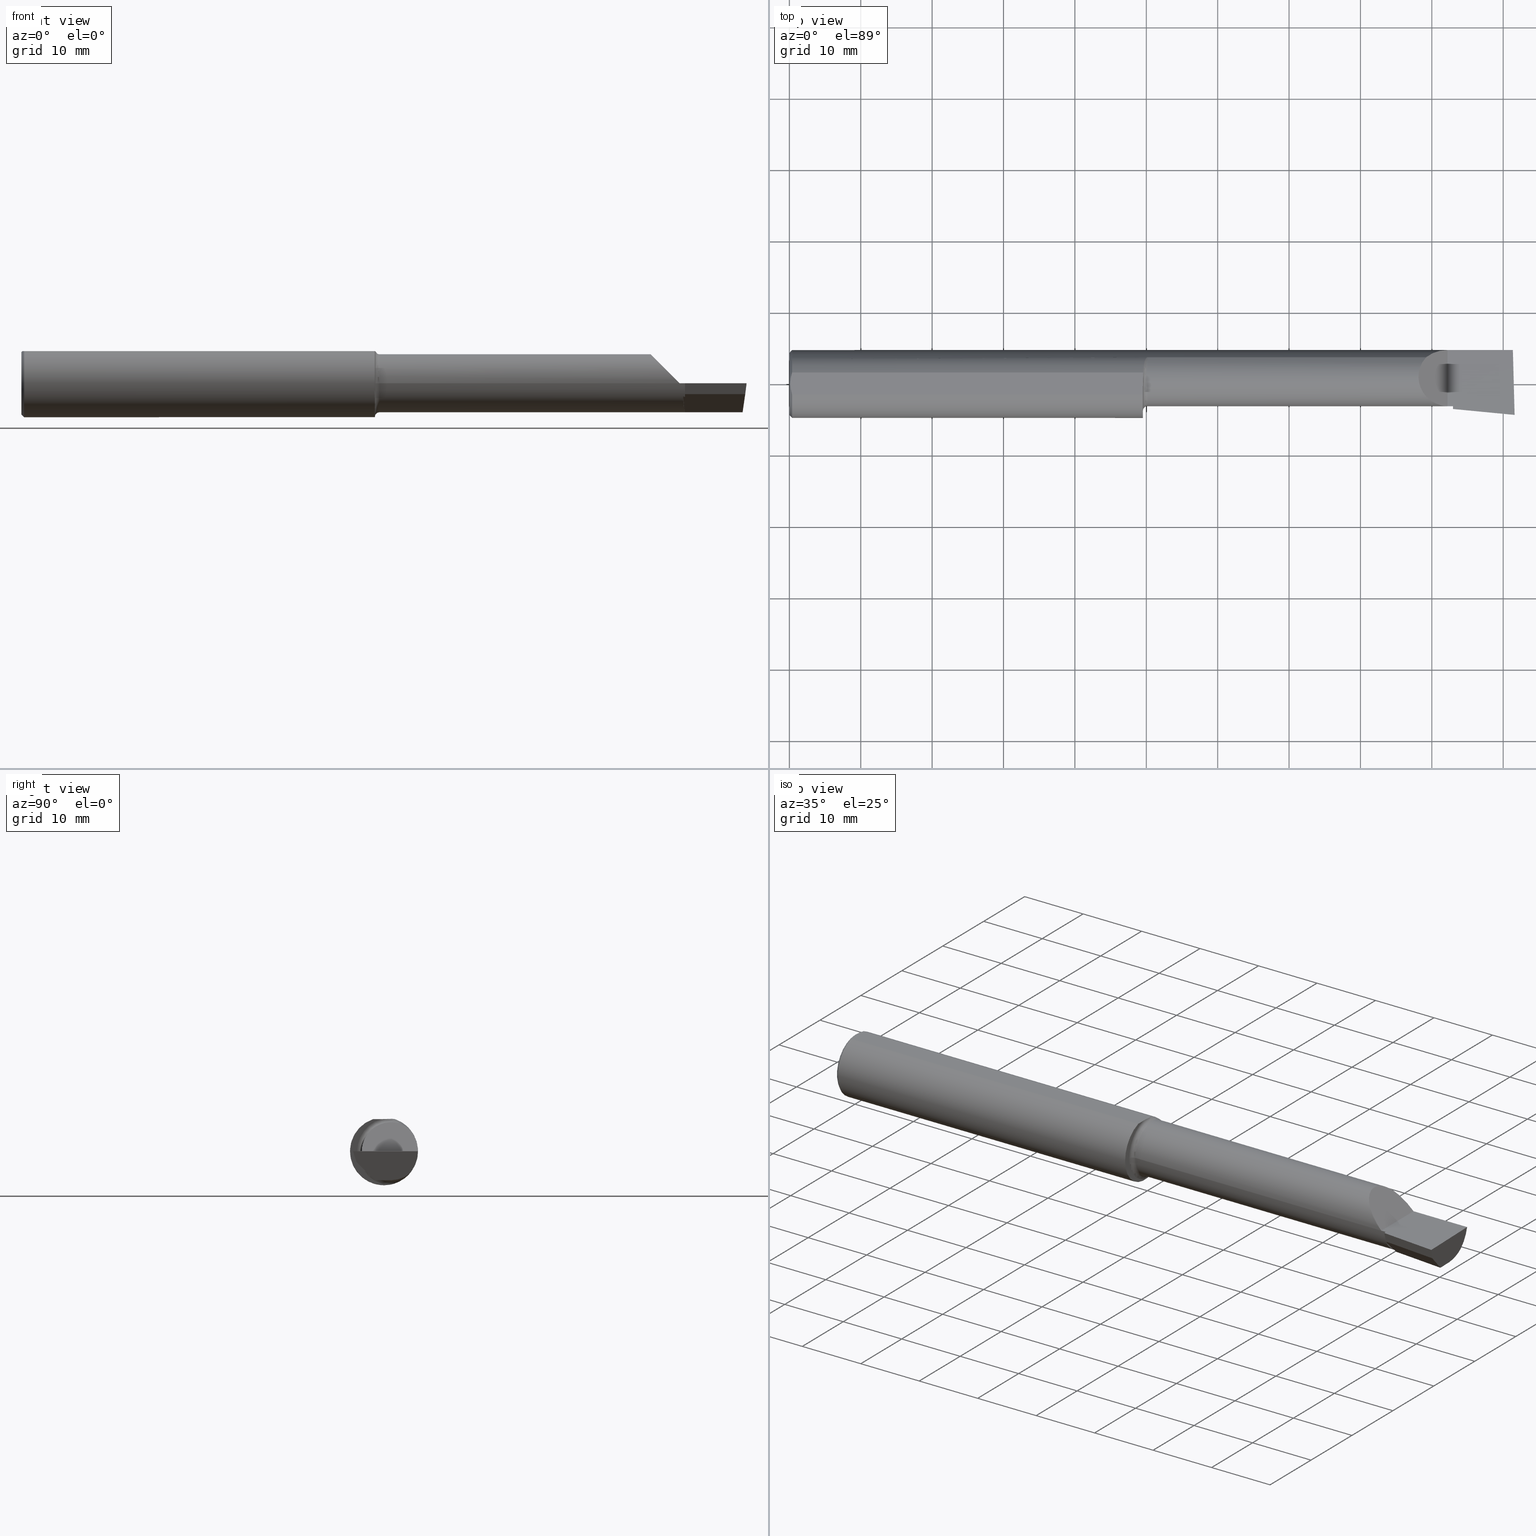
[diagram: canonical four-view strip — front | top / right | iso, engineering-drawing reading convention]
A machine part, canonical four-view strip (front | top / right | iso — engineering-drawing reading convention). The complete STEP part file that produces these views, byte-faithful:
ISO-10303-21;
HEADER;
FILE_DESCRIPTION (( 'STEP AP203' ),
    '1' );
FILE_NAME ('212121-LHB3602000.STEP',
    '2024-08-27T20:57:13',
    ( '' ),
    ( '' ),
    'SwSTEP 2.0',
    'SolidWorks 2024',
    '' );
FILE_SCHEMA (( 'CONFIG_CONTROL_DESIGN' ));
ENDSEC;

DATA;
#1 = ORIENTED_EDGE ( 'NONE', *, *, #312, .T. ) ;
#2 = PRODUCT ( '212121-LHB3602000', '212121-LHB3602000', '', ( #313 ) ) ;
#3 = CIRCLE ( 'NONE', #16, 0.1850500000000001866 ) ;
#4 = CARTESIAN_POINT ( 'NONE',  ( 1.950000000000000178, -0.1476500000000001978, 0.000000000000000000 ) ) ;
#5 = VECTOR ( 'NONE', #236, 39.37007874015748143 ) ;
#6 = CARTESIAN_POINT ( 'NONE',  ( 4.000000000000000000, 0.03739999999999996799, -0.1600499999999999701 ) ) ;
#7 = CC_DESIGN_PERSON_AND_ORGANIZATION_ASSIGNMENT ( #256, #205, ( #2 ) ) ;
#8 = EDGE_CURVE ( 'NONE', #480, #442, #420, .T. ) ;
#9 = DIRECTION ( 'NONE',  ( -1.000000000000000000, 4.268512490100411279E-18, -0.000000000000000000 ) ) ;
#10 = VERTEX_POINT ( 'NONE', #544 ) ;
#11 = DIRECTION ( 'NONE',  ( -4.268512490100411279E-18, -1.000000000000000000, 0.000000000000000000 ) ) ;
#12 = ADVANCED_FACE ( 'NONE', ( #546 ), #490, .F. ) ;
#13 = CARTESIAN_POINT ( 'NONE',  ( 0.01499999999999999424, 0.000000000000000000, 0.000000000000000000 ) ) ;
#14 = ORIENTED_EDGE ( 'NONE', *, *, #60, .T. ) ;
#15 = CARTESIAN_POINT ( 'NONE',  ( 4.002124209719674752, -0.2499430938217229448, -1.369336491024132282E-16 ) ) ;
#16 = AXIS2_PLACEMENT_3D ( 'NONE', #73, #464, #615 ) ;
#17 = FACE_OUTER_BOUND ( 'NONE', #172, .T. ) ;
#18 = LOCAL_TIME ( 13, 57, 13.00000000000000000, #704 ) ;
#19 = ORIENTED_EDGE ( 'NONE', *, *, #72, .F. ) ;
#20 = DIRECTION ( 'NONE',  ( 0.02677973311239319198, -0.9996413586354002678, -4.242669001540338239E-18 ) ) ;
#21 = AXIS2_PLACEMENT_3D ( 'NONE', #563, #403, #64 ) ;
#22 = CARTESIAN_POINT ( 'NONE',  ( 4.007570346891563773, -0.1713789414967140379, -1.378085585473596570E-16 ) ) ;
#23 = CALENDAR_DATE ( 2024, 27, 8 ) ;
#24 = ORIENTED_EDGE ( 'NONE', *, *, #596, .T. ) ;
#25 = EDGE_CURVE ( 'NONE', #523, #217, #486, .T. ) ;
#26 = LINE ( 'NONE', #424, #5 ) ;
#27 = ORIENTED_EDGE ( 'NONE', *, *, #457, .T. ) ;
#28 = DIRECTION ( 'NONE',  ( -0.1175789623991730232, 0.000000000000000000, -0.9930635365378861490 ) ) ;
#29 = CARTESIAN_POINT ( 'NONE',  ( 3.659999999999999698, -0.1038634330788594656, -0.07523725788978889717 ) ) ;
#30 = VERTEX_POINT ( 'NONE', #645 ) ;
#31 = CARTESIAN_POINT ( 'NONE',  ( 0.005000000000000064289, 2.941982644279459108E-17, 0.1773499999999999799 ) ) ;
#32 = AXIS2_PLACEMENT_3D ( 'NONE', #670, #404, #453 ) ;
#33 = FACE_OUTER_BOUND ( 'NONE', #571, .T. ) ;
#34 = ORIENTED_EDGE ( 'NONE', *, *, #182, .T. ) ;
#35 = CYLINDRICAL_SURFACE ( 'NONE', #566, 0.1600500000000000811 ) ;
#36 = CARTESIAN_POINT ( 'NONE',  ( 3.658696733852337513, -0.03937063256198262279, -0.1404363566730252033 ) ) ;
#37 = VERTEX_POINT ( 'NONE', #45 ) ;
#38 = LINE ( 'NONE', #694, #214 ) ;
#39 = ORIENTED_EDGE ( 'NONE', *, *, #356, .F. ) ;
#40 = AXIS2_PLACEMENT_3D ( 'NONE', #89, #421, #294 ) ;
#41 = EDGE_CURVE ( 'NONE', #164, #310, #149, .T. ) ;
#42 = CARTESIAN_POINT ( 'NONE',  ( 0.005000000000000064289, 2.941982644279459108E-17, 0.1773499999999999799 ) ) ;
#43 = CC_DESIGN_APPROVAL ( #560, ( #423 ) ) ;
#44 = ORIENTED_EDGE ( 'NONE', *, *, #257, .F. ) ;
#45 = CARTESIAN_POINT ( 'NONE',  ( 4.000000000000000888, -0.1706500000000002737, 0.000000000000000000 ) ) ;
#46 = CALENDAR_DATE ( 2024, 27, 8 ) ;
#47 = CARTESIAN_POINT ( 'NONE',  ( 4.000000000000000000, -0.2500000000000000555, -1.365923996832131609E-16 ) ) ;
#48 = ADVANCED_FACE ( 'NONE', ( #387 ), #494, .F. ) ;
#49 = CC_DESIGN_DATE_AND_TIME_ASSIGNMENT ( #471, #522, ( #423 ) ) ;
#50 = DIRECTION ( 'NONE',  ( 0.000000000000000000, 0.000000000000000000, 1.000000000000000000 ) ) ;
#51 = VECTOR ( 'NONE', #399, 39.37007874015748143 ) ;
#52 = DIRECTION ( 'NONE',  ( -2.998855530929885675E-18, -0.7025528302622682242, 0.7116315905652844664 ) ) ;
#53 = LINE ( 'NONE', #272, #577 ) ;
#54 = COORDINATED_UNIVERSAL_TIME_OFFSET ( 8, 0, .BEHIND. ) ;
#55 = EDGE_CURVE ( 'NONE', #361, #83, #98, .T. ) ;
#56 = CARTESIAN_POINT ( 'NONE',  ( 1.950785114220952909, 0.06039039658755706447, 0.1773499999999999799 ) ) ;
#57 = DIRECTION ( 'NONE',  ( -0.06717917588521687966, -0.6976824170844040385, 0.7132504491541848957 ) ) ;
#58 = ORIENTED_EDGE ( 'NONE', *, *, #105, .T. ) ;
#59 = CIRCLE ( 'NONE', #504, 0.1873499999999999888 ) ;
#60 = EDGE_CURVE ( 'NONE', #361, #523, #266, .T. ) ;
#61 = DIRECTION ( 'NONE',  ( 0.000000000000000000, -1.000000000000000000, 0.000000000000000000 ) ) ;
#62 = DIRECTION ( 'NONE',  ( 1.000000000000000000, 0.000000000000000000, 0.000000000000000000 ) ) ;
#63 = ORIENTED_EDGE ( 'NONE', *, *, #96, .T. ) ;
#64 = DIRECTION ( 'NONE',  ( 0.000000000000000000, 1.000000000000000000, -1.438723400918613551E-16 ) ) ;
#65 = DIRECTION ( 'NONE',  ( 0.000000000000000000, 0.000000000000000000, 1.000000000000000000 ) ) ;
#66 = ORIENTED_EDGE ( 'NONE', *, *, #199, .T. ) ;
#67 = VECTOR ( 'NONE', #264, 39.37007874015748143 ) ;
#68 = CARTESIAN_POINT ( 'NONE',  ( 3.629999999999999893, -0.1226500000000001755, -7.715274834628322913E-17 ) ) ;
#69 = VECTOR ( 'NONE', #169, 39.37007874015748143 ) ;
#70 = DIRECTION ( 'NONE',  ( 0.000000000000000000, 0.000000000000000000, 1.000000000000000000 ) ) ;
#71 = ORIENTED_EDGE ( 'NONE', *, *, #267, .F. ) ;
#72 = EDGE_CURVE ( 'NONE', #599, #340, #375, .T. ) ;
#73 = CARTESIAN_POINT ( 'NONE',  ( 1.950000000000000178, 0.03739999999999999575, 0.000000000000000000 ) ) ;
#74 = DIRECTION ( 'NONE',  ( -1.000000000000000000, 4.268512490100411279E-18, -0.000000000000000000 ) ) ;
#75 = CALENDAR_DATE ( 2024, 27, 8 ) ;
#76 = ORIENTED_EDGE ( 'NONE', *, *, #487, .T. ) ;
#77 = CARTESIAN_POINT ( 'NONE',  ( 3.656051771408124651, -0.03882109269545381408, -0.1407350259470294407 ) ) ;
#78 = CARTESIAN_POINT ( 'NONE',  ( 8.128748646909141540E-32, 0.1873499999999999610, 5.059984255808939247E-16 ) ) ;
#79 = ORIENTED_EDGE ( 'NONE', *, *, #200, .T. ) ;
#80 = PRODUCT_DEFINITION ( 'UNKNOWN', '', #568, #699 ) ;
#81 = DIRECTION ( 'NONE',  ( 0.06836202603457079696, 0.7099667855717585185, 0.7009092642998474565 ) ) ;
#82 = CARTESIAN_POINT ( 'NONE',  ( 3.659999999999999698, -0.1479117236128369983, 0.000000000000000000 ) ) ;
#83 = VERTEX_POINT ( 'NONE', #208 ) ;
#84 = CARTESIAN_POINT ( 'NONE',  ( 0.01499999999999999424, 0.06039039658753699719, 0.1773499999999999799 ) ) ;
#85 = CARTESIAN_POINT ( 'NONE',  ( 0.01499999999999999424, 0.06039039658753699719, 0.1773499999999999799 ) ) ;
#86 = ORIENTED_EDGE ( 'NONE', *, *, #475, .F. ) ;
#87 = CARTESIAN_POINT ( 'NONE',  ( 1.975000000000000089, 0.1454917112299455306, -0.1180346748349065666 ) ) ;
#88 = ORIENTED_EDGE ( 'NONE', *, *, #515, .F. ) ;
#89 = CARTESIAN_POINT ( 'NONE',  ( 3.659999999999999698, -0.1479117236128369983, 0.000000000000000000 ) ) ;
#90 = ORIENTED_EDGE ( 'NONE', *, *, #25, .T. ) ;
#91 = UNCERTAINTY_MEASURE_WITH_UNIT (LENGTH_MEASURE( 1.000000000000000082E-05 ), #551, 'distance_accuracy_value', 'NONE');
#92 = APPLICATION_PROTOCOL_DEFINITION ( 'international standard', 'config_control_design', 1994, #426 ) ;
#93 = AXIS2_PLACEMENT_3D ( 'NONE', #610, #62, #397 ) ;
#94 = EDGE_LOOP ( 'NONE', ( #44, #255, #168, #636 ) ) ;
#95 = EDGE_LOOP ( 'NONE', ( #113, #19 ) ) ;
#96 = EDGE_CURVE ( 'NONE', #614, #30, #333, .T. ) ;
#97 = CC_DESIGN_DATE_AND_TIME_ASSIGNMENT ( #133, #501, ( #80 ) ) ;
#98 = CIRCLE ( 'NONE', #511, 0.1873499999999999888 ) ;
#99 = ORIENTED_EDGE ( 'NONE', *, *, #248, .F. ) ;
#100 = AXIS2_PLACEMENT_3D ( 'NONE', #395, #460, #221 ) ;
#101 = DIRECTION ( 'NONE',  ( -4.268512490100411279E-18, -1.000000000000000000, 0.000000000000000000 ) ) ;
#102 = VECTOR ( 'NONE', #707, 39.37007874015748143 ) ;
#103 = CARTESIAN_POINT ( 'NONE',  ( 3.977555437944266803, 0.1454917112299461412, -0.1180346748349058866 ) ) ;
#104 = CARTESIAN_POINT ( 'NONE',  ( 1.957856989254823210, 0.1163906274731418417, 0.1470923697301113608 ) ) ;
#105 = EDGE_CURVE ( 'NONE', #442, #480, #319, .T. ) ;
#106 = PERSON_AND_ORGANIZATION_ROLE ( 'creator' ) ;
#107 = CARTESIAN_POINT ( 'NONE',  ( 3.977837650838079941, -0.05073698874247323243, -0.1600499999999999701 ) ) ;
#108 = EDGE_CURVE ( 'NONE', #310, #201, #53, .T. ) ;
#109 = VERTEX_POINT ( 'NONE', #505 ) ;
#110 = COORDINATED_UNIVERSAL_TIME_OFFSET ( 8, 0, .BEHIND. ) ;
#111 = CARTESIAN_POINT ( 'NONE',  ( 1.950000000000000178, -0.1476500000000001978, 0.000000000000000000 ) ) ;
#112 = DIRECTION ( 'NONE',  ( -0.09584575252022427272, -0.9953961983671787417, 0.000000000000000000 ) ) ;
#113 = ORIENTED_EDGE ( 'NONE', *, *, #171, .T. ) ;
#114 = VECTOR ( 'NONE', #305, 39.37007874015748143 ) ;
#115 = DIRECTION ( 'NONE',  ( -0.7071067811865437980, 0.000000000000000000, -0.7071067811865513475 ) ) ;
#116 = PLANE ( 'NONE',  #156 ) ;
#117 = VERTEX_POINT ( 'NONE', #4 ) ;
#118 = CARTESIAN_POINT ( 'NONE',  ( 3.545676520271627385, 0.1728409665178091137, 0.08432347972837070382 ) ) ;
#119 = CARTESIAN_POINT ( 'NONE',  ( 0.000000000000000000, 0.000000000000000000, 0.000000000000000000 ) ) ;
#120 = ORIENTED_EDGE ( 'NONE', *, *, #369, .T. ) ;
#121 = CARTESIAN_POINT ( 'NONE',  ( 3.659999999999999698, -0.1226499999999999813, 0.000000000000000000 ) ) ;
#122 = VECTOR ( 'NONE', #158, 39.37007874015748143 ) ;
#123 = CARTESIAN_POINT ( 'NONE',  ( 1.950000000000000178, 0.03015080213903642212, -0.1849079544810678932 ) ) ;
#124 = CONICAL_SURFACE ( 'NONE', #197, 0.1873499999999999888, 0.7853981633974602694 ) ;
#125 = DATE_AND_TIME ( #330, #657 ) ;
#126 = VERTEX_POINT ( 'NONE', #663 ) ;
#127 = CARTESIAN_POINT ( 'NONE',  ( 1.950000000000000178, -0.01542499408424075763, 0.1773499999999999799 ) ) ;
#128 = DIRECTION ( 'NONE',  ( 0.000000000000000000, -1.000000000000000000, 0.000000000000000000 ) ) ;
#129 = EDGE_LOOP ( 'NONE', ( #419, #154, #88 ) ) ;
#130 = ADVANCED_FACE ( 'NONE', ( #17 ), #116, .F. ) ;
#131 = CARTESIAN_POINT ( 'NONE',  ( 0.005916828623699200637, 0.02060071390057457985, 0.1773500000000000354 ) ) ;
#132 = DIRECTION ( 'NONE',  ( 1.000000000000000000, -4.268512490100411279E-18, 0.000000000000000000 ) ) ;
#133 = DATE_AND_TIME ( #23, #483 ) ;
#134 = ORIENTED_EDGE ( 'NONE', *, *, #41, .F. ) ;
#135 = ADVANCED_FACE ( 'NONE', ( #286 ), #564, .F. ) ;
#136 = DIRECTION ( 'NONE',  ( 4.268512490100411279E-18, 1.000000000000000000, -1.438723400918613551E-16 ) ) ;
#137 = CLOSED_SHELL ( 'NONE', ( #635, #681, #377, #222, #12, #575, #432, #48, #620, #334, #130, #161, #383, #502, #135, #525, #559, #147, #572 ) ) ;
#138 = DIRECTION ( 'NONE',  ( 0.7071067811865390240, 0.000000000000000000, -0.7071067811865560104 ) ) ;
#139 = ORIENTED_EDGE ( 'NONE', *, *, #528, .T. ) ;
#140 = LINE ( 'NONE', #689, #693 ) ;
#141 = B_SPLINE_CURVE_WITH_KNOTS ( 'NONE', 3,
 ( #31, #524, #131, #185, #362, #84 ),
 .UNSPECIFIED., .F., .F.,
 ( 4, 2, 4 ),
 ( 0.003471415557842634329, 0.004247578446323233697, 0.005023741334803832198 ),
 .UNSPECIFIED. ) ;
#142 = CARTESIAN_POINT ( 'NONE',  ( -6.831754240405711811E-19, -0.1226500000000000784, 0.000000000000000000 ) ) ;
#143 = VECTOR ( 'NONE', #138, 39.37007874015748143 ) ;
#144 = ORIENTED_EDGE ( 'NONE', *, *, #171, .F. ) ;
#145 = CARTESIAN_POINT ( 'NONE',  ( 1.961427394884099895, 0.1284293148232723558, -0.1365241029388019611 ) ) ;
#146 = EDGE_LOOP ( 'NONE', ( #580, #401, #1, #34, #648 ) ) ;
#147 = ADVANCED_FACE ( 'NONE', ( #392 ), #166, .F. ) ;
#148 = CARTESIAN_POINT ( 'NONE',  ( 1.950336700870086482, 0.05340758954924363505, -0.1799583179751515771 ) ) ;
#149 = LINE ( 'NONE', #698, #281 ) ;
#150 = PERSON_AND_ORGANIZATION ( #701, #323 ) ;
#151 = VECTOR ( 'NONE', #389, 39.37007874015748143 ) ;
#152 = CARTESIAN_POINT ( 'NONE',  ( 1.951254447665113245, 0.06913273524514566837, 0.1743730995284143437 ) ) ;
#153 = ORIENTED_EDGE ( 'NONE', *, *, #72, .T. ) ;
#154 = ORIENTED_EDGE ( 'NONE', *, *, #444, .T. ) ;
#155 =( NAMED_UNIT ( * ) PLANE_ANGLE_UNIT ( ) SI_UNIT ( $, .RADIAN. ) );
#156 = AXIS2_PLACEMENT_3D ( 'NONE', #277, #565, #170 ) ;
#157 = CARTESIAN_POINT ( 'NONE',  ( 1.972747571447394765, 0.1451248899809843285, 0.1184877922625929836 ) ) ;
#158 = DIRECTION ( 'NONE',  ( 1.000000000000000000, -4.268512490100411279E-18, 0.000000000000000000 ) ) ;
#159 = APPROVAL_PERSON_ORGANIZATION ( #150, #276, #543 ) ;
#160 = ORIENTED_EDGE ( 'NONE', *, *, #393, .T. ) ;
#161 = ADVANCED_FACE ( 'NONE', ( #517 ), #273, .T. ) ;
#162 = LINE ( 'NONE', #607, #151 ) ;
#163 = DIMENSIONAL_EXPONENTS ( 1.000000000000000000, 0.000000000000000000, 0.000000000000000000, 0.000000000000000000, 0.000000000000000000, 0.000000000000000000, 0.000000000000000000 ) ;
#164 = VERTEX_POINT ( 'NONE', #456 ) ;
#165 = CARTESIAN_POINT ( 'NONE',  ( 3.659999999999999698, -0.2500000000000000555, -8.197217953576400343E-17 ) ) ;
#166 = PLANE ( 'NONE',  #261 ) ;
#167 = AXIS2_PLACEMENT_3D ( 'NONE', #339, #9, #219 ) ;
#168 = ORIENTED_EDGE ( 'NONE', *, *, #108, .T. ) ;
#169 = DIRECTION ( 'NONE',  ( -2.998855530929885675E-18, -0.7025528302622682242, 0.7116315905652844664 ) ) ;
#170 = DIRECTION ( 'NONE',  ( 0.000000000000000000, 0.000000000000000000, -1.000000000000000000 ) ) ;
#171 = EDGE_CURVE ( 'NONE', #599, #340, #508, .T. ) ;
#172 = EDGE_LOOP ( 'NONE', ( #191, #58 ) ) ;
#173 = PRODUCT_RELATED_PRODUCT_CATEGORY ( 'detail', '', ( #2 ) ) ;
#174 = CARTESIAN_POINT ( 'NONE',  ( 3.975476519002682618, 0.03739999999999996799, -0.1600499999999999701 ) ) ;
#175 = CARTESIAN_POINT ( 'NONE',  ( 3.659999999999999698, -0.1379117236128369062, 0.000000000000000000 ) ) ;
#176 = ORIENTED_EDGE ( 'NONE', *, *, #706, .F. ) ;
#177 = DIRECTION ( 'NONE',  ( -0.7071067811865512365, 0.000000000000000000, 0.7071067811865436870 ) ) ;
#178 = CYLINDRICAL_SURFACE ( 'NONE', #314, 0.1873499999999999888 ) ;
#179 = ORIENTED_EDGE ( 'NONE', *, *, #182, .F. ) ;
#180 = LINE ( 'NONE', #165, #482 ) ;
#181 = DIRECTION ( 'NONE',  ( -4.268512490100411279E-18, -1.000000000000000000, 0.000000000000000000 ) ) ;
#182 = EDGE_CURVE ( 'NONE', #83, #398, #472, .T. ) ;
#183 = DATE_AND_TIME ( #75, #638 ) ;
#184 = ORIENTED_EDGE ( 'NONE', *, *, #248, .T. ) ;
#185 = CARTESIAN_POINT ( 'NONE',  ( 0.009346310357819969869, 0.04072930668827118295, 0.1773499999999999799 ) ) ;
#186 = EDGE_CURVE ( 'NONE', #126, #352, #552, .T. ) ;
#187 = FACE_OUTER_BOUND ( 'NONE', #129, .T. ) ;
#188 = EDGE_LOOP ( 'NONE', ( #63, #671, #684, #696, #160, #629 ) ) ;
#189 = CARTESIAN_POINT ( 'NONE',  ( 1.965943198097122480, 0.1383011673991917656, -0.1264147259943165791 ) ) ;
#190 = CARTESIAN_POINT ( 'NONE',  ( 3.659999999999999698, -0.1189062990755807570, -0.06000000000000013656 ) ) ;
#191 = ORIENTED_EDGE ( 'NONE', *, *, #8, .T. ) ;
#192 = FACE_OUTER_BOUND ( 'NONE', #94, .T. ) ;
#193 = DIRECTION ( 'NONE',  ( -1.000000000000000000, 4.268512490100411279E-18, -0.000000000000000000 ) ) ;
#194 = CIRCLE ( 'NONE', #601, 0.1600499999999999701 ) ;
#195 = EDGE_CURVE ( 'NONE', #109, #10, #626, .T. ) ;
#196 = ORIENTED_EDGE ( 'NONE', *, *, #108, .F. ) ;
#197 = AXIS2_PLACEMENT_3D ( 'NONE', #436, #653, #705 ) ;
#198 = CARTESIAN_POINT ( 'NONE',  ( 3.977555437944266803, 0.1454917112299461412, -0.1180346748349058866 ) ) ;
#199 = EDGE_CURVE ( 'NONE', #201, #37, #613, .T. ) ;
#200 = EDGE_CURVE ( 'NONE', #282, #233, #59, .T. ) ;
#201 = VERTEX_POINT ( 'NONE', #175 ) ;
#202 = CARTESIAN_POINT ( 'NONE',  ( 1.951203659466147933, 0.04770763948016056022, 0.1773499999999999799 ) ) ;
#203 = DIRECTION ( 'NONE',  ( -1.000000000000000000, -0.000000000000000000, -0.000000000000000000 ) ) ;
#204 =( BOUNDED_CURVE ( )  B_SPLINE_CURVE ( 3, ( #662, #341, #234, #677 ),
 .UNSPECIFIED., .F., .F. ) 
 B_SPLINE_CURVE_WITH_KNOTS ( ( 4, 4 ),
 ( 6.060671081087566137, 6.802126725515762473 ),
 .UNSPECIFIED. ) 
 CURVE ( )  GEOMETRIC_REPRESENTATION_ITEM ( )  RATIONAL_B_SPLINE_CURVE ( ( 1.000000000000000000, 0.9547092712975357998, 0.9547092712975357998, 1.000000000000000000 ) ) 
 REPRESENTATION_ITEM ( '' )  );
#205 = PERSON_AND_ORGANIZATION_ROLE ( 'design_owner' ) ;
#206 = DIRECTION ( 'NONE',  ( 0.09140971883575740864, 0.9493262270931228652, 0.3007057995042735632 ) ) ;
#207 = CARTESIAN_POINT ( 'NONE',  ( 1.975000000000000089, 0.03739999999999998881, 0.000000000000000000 ) ) ;
#208 = CARTESIAN_POINT ( 'NONE',  ( 0.01499999999999999424, 0.000000000000000000, -0.1873499999999999888 ) ) ;
#209 = ORIENTED_EDGE ( 'NONE', *, *, #584, .F. ) ;
#210 = DIRECTION ( 'NONE',  ( -1.000000000000000000, -0.000000000000000000, -0.000000000000000000 ) ) ;
#211 = CARTESIAN_POINT ( 'NONE',  ( 1.953756193690770138, 0.09375315173897452725, 0.1624602995582725973 ) ) ;
#212 = LINE ( 'NONE', #650, #122 ) ;
#213 = DIRECTION ( 'NONE',  ( 0.000000000000000000, 0.000000000000000000, 1.000000000000000000 ) ) ;
#214 = VECTOR ( 'NONE', #239, 39.37007874015748854 ) ;
#215 = DIRECTION ( 'NONE',  ( -1.000000000000000000, 4.268512490100411279E-18, -0.000000000000000000 ) ) ;
#216 = AXIS2_PLACEMENT_3D ( 'NONE', #13, #268, #65 ) ;
#217 = VERTEX_POINT ( 'NONE', #400 ) ;
#218 = LINE ( 'NONE', #345, #69 ) ;
#219 = DIRECTION ( 'NONE',  ( -4.268512490100411279E-18, -1.000000000000000000, 0.000000000000000000 ) ) ;
#220 = ORIENTED_EDGE ( 'NONE', *, *, #596, .F. ) ;
#221 = DIRECTION ( 'NONE',  ( -1.000000000000000000, 0.000000000000000000, 0.000000000000000000 ) ) ;
#222 = ADVANCED_FACE ( 'NONE', ( #512 ), #178, .T. ) ;
#223 = CARTESIAN_POINT ( 'NONE',  ( 3.659999999999999698, 0.03739999999999996799, -0.1600499999999999701 ) ) ;
#224 = ORIENTED_EDGE ( 'NONE', *, *, #25, .F. ) ;
#225 = CARTESIAN_POINT ( 'NONE',  ( 3.992367153641839028, -0.1509096159518786284, -0.06000000000000012962 ) ) ;
#226 = DIRECTION ( 'NONE',  ( -0.9953961983671787417, 0.09584575252022427272, -1.770596418142760781E-15 ) ) ;
#227 = ORIENTED_EDGE ( 'NONE', *, *, #702, .F. ) ;
#228 =( BOUNDED_CURVE ( )  B_SPLINE_CURVE ( 3, ( #354, #240, #526, #29 ),
 .UNSPECIFIED., .F., .T. ) 
 B_SPLINE_CURVE_WITH_KNOTS ( ( 4, 4 ),
 ( 2.836913096765500963, 2.852002354478645252 ),
 .UNSPECIFIED. ) 
 CURVE ( )  GEOMETRIC_REPRESENTATION_ITEM ( )  RATIONAL_B_SPLINE_CURVE ( ( 1.000000000000000000, 0.9999810262818066287, 0.9999810262818066287, 1.000000000000000000 ) ) 
 REPRESENTATION_ITEM ( '' )  );
#229 = DIRECTION ( 'NONE',  ( 0.000000000000000000, -1.000000000000000000, 0.000000000000000000 ) ) ;
#230 = CARTESIAN_POINT ( 'NONE',  ( 3.648447552560979190, -0.1177939249073253897, -0.06000000000000012962 ) ) ;
#231 = B_SPLINE_CURVE_WITH_KNOTS ( 'NONE', 3,
 ( #485, #585, #697, #481, #536, #573, #202, #430 ),
 .UNSPECIFIED., .F., .F.,
 ( 4, 2, 2, 4 ),
 ( 0.01216978501342508290, 0.01265286668816368275, 0.01313594836290228260, 0.01410211171237948230 ),
 .UNSPECIFIED. ) ;
#232 = PERSON_AND_ORGANIZATION_ROLE ( 'design_supplier' ) ;
#233 = VERTEX_POINT ( 'NONE', #674 ) ;
#234 = CARTESIAN_POINT ( 'NONE',  ( 3.975117649406746612, 0.1156304438478833047, -0.1453804992321584277 ) ) ;
#235 = EDGE_CURVE ( 'NONE', #466, #241, #619, .T. ) ;
#236 = DIRECTION ( 'NONE',  ( -0.000000000000000000, 1.000000000000000000, -0.000000000000000000 ) ) ;
#237 = EDGE_LOOP ( 'NONE', ( #450, #376, #589, #519, #473 ) ) ;
#238 = EDGE_CURVE ( 'NONE', #233, #398, #162, .T. ) ;
#239 = DIRECTION ( 'NONE',  ( -0.1199690778467080998, 0.3102690083707252966, -0.9430485474275739355 ) ) ;
#240 = CARTESIAN_POINT ( 'NONE',  ( 3.653205481862503934, -0.1046149184608682614, -0.07381336932430714037 ) ) ;
#241 = VERTEX_POINT ( 'NONE', #107 ) ;
#242 = CIRCLE ( 'NONE', #437, 0.1600499999999999701 ) ;
#243 = CARTESIAN_POINT ( 'NONE',  ( 1.972144995725005234, 0.1448851833857920934, -0.1187833539262112548 ) ) ;
#244 = DIRECTION ( 'NONE',  ( -1.000000000000000000, 4.268512490100411279E-18, -0.000000000000000000 ) ) ;
#245 = PERSON_AND_ORGANIZATION_ROLE ( 'creator' ) ;
#246 = ORIENTED_EDGE ( 'NONE', *, *, #592, .T. ) ;
#247 = DIRECTION ( 'NONE',  ( -4.268512490100411279E-18, -1.000000000000000000, 0.000000000000000000 ) ) ;
#248 = EDGE_CURVE ( 'NONE', #298, #30, #691, .T. ) ;
#249 = DIRECTION ( 'NONE',  ( 0.9953961983671787417, -0.09584575252022423109, -0.000000000000000000 ) ) ;
#250 = ORIENTED_EDGE ( 'NONE', *, *, #706, .T. ) ;
#251 = CARTESIAN_POINT ( 'NONE',  ( 1.952713316750944950, 0.08594842947873448935, -0.1668827936309223714 ) ) ;
#252 = AXIS2_PLACEMENT_3D ( 'NONE', #516, #555, #229 ) ;
#253 = ORIENTED_EDGE ( 'NONE', *, *, #325, .T. ) ;
#254 = CARTESIAN_POINT ( 'NONE',  ( 1.950000000000000178, 0.03015080213903642212, -0.1849079544810678932 ) ) ;
#255 = ORIENTED_EDGE ( 'NONE', *, *, #41, .T. ) ;
#256 = PERSON_AND_ORGANIZATION ( #701, #323 ) ;
#257 = EDGE_CURVE ( 'NONE', #164, #506, #242, .T. ) ;
#258 = ORIENTED_EDGE ( 'NONE', *, *, #627, .F. ) ;
#259 = DATE_AND_TIME ( #46, #18 ) ;
#260 = EDGE_CURVE ( 'NONE', #614, #109, #683, .T. ) ;
#261 = AXIS2_PLACEMENT_3D ( 'NONE', #553, #226, #112 ) ;
#262 = CARTESIAN_POINT ( 'NONE',  ( 1.970979411886278232, 0.1441668297984126657, 0.1196516435036799331 ) ) ;
#263 = LINE ( 'NONE', #379, #102 ) ;
#264 = DIRECTION ( 'NONE',  ( 1.000000000000000000, 0.000000000000000000, 0.000000000000000000 ) ) ;
#265 =( NAMED_UNIT ( * ) SI_UNIT ( $, .STERADIAN. ) SOLID_ANGLE_UNIT ( ) );
#266 = LINE ( 'NONE', #431, #67 ) ;
#267 = EDGE_CURVE ( 'NONE', #340, #164, #228, .T. ) ;
#268 = DIRECTION ( 'NONE',  ( -1.000000000000000000, -0.000000000000000000, -0.000000000000000000 ) ) ;
#269 = PERSON_AND_ORGANIZATION ( #701, #323 ) ;
#270 = FACE_OUTER_BOUND ( 'NONE', #567, .T. ) ;
#271 =( BOUNDED_CURVE ( )  B_SPLINE_CURVE ( 3, ( #600, #655, #386, #324 ),
 .UNSPECIFIED., .F., .T. ) 
 B_SPLINE_CURVE_WITH_KNOTS ( ( 4, 4 ),
 ( 5.541729662751375685, 7.853981633974485455 ),
 .UNSPECIFIED. ) 
 CURVE ( )  GEOMETRIC_REPRESENTATION_ITEM ( )  RATIONAL_B_SPLINE_CURVE ( ( 1.000000000000000000, 0.6019254882129680961, 0.6019254882129680961, 1.000000000000000000 ) ) 
 REPRESENTATION_ITEM ( '' )  );
#272 = CARTESIAN_POINT ( 'NONE',  ( 3.659999999999999698, -0.1388235826453732003, 0.002878732955684652674 ) ) ;
#273 = CONICAL_SURFACE ( 'NONE', #93, 0.1873499999999999888, 0.7853981633974602694 ) ;
#274 = EDGE_LOOP ( 'NONE', ( #574, #39, #134, #71, #144, #343, #623, #425 ) ) ;
#275 = DIRECTION ( 'NONE',  ( -1.000000000000000000, 4.268512490100411279E-18, 0.000000000000000000 ) ) ;
#276 = APPROVAL ( #371, 'UNSPECIFIED' ) ;
#277 = CARTESIAN_POINT ( 'NONE',  ( 0.000000000000000000, 0.000000000000000000, 0.000000000000000000 ) ) ;
#278 = ORIENTED_EDGE ( 'NONE', *, *, #528, .F. ) ;
#279 = LINE ( 'NONE', #335, #641 ) ;
#280 = DIRECTION ( 'NONE',  ( 0.000000000000000000, -1.000000000000000000, 0.000000000000000000 ) ) ;
#281 = VECTOR ( 'NONE', #52, 39.37007874015748143 ) ;
#282 = VERTEX_POINT ( 'NONE', #123 ) ;
#283 = AXIS2_PLACEMENT_3D ( 'NONE', #111, #275, #11 ) ;
#284 = CARTESIAN_POINT ( 'NONE',  ( 0.000000000000000000, 0.000000000000000000, -0.1723499999999996424 ) ) ;
#285 = LOCAL_TIME ( 13, 57, 13.00000000000000000, #388 ) ;
#286 = FACE_OUTER_BOUND ( 'NONE', #390, .T. ) ;
#287 = APPROVAL_STATUS ( 'not_yet_approved' ) ;
#288 = ORIENTED_EDGE ( 'NONE', *, *, #293, .T. ) ;
#289 = CARTESIAN_POINT ( 'NONE',  ( 3.511965325165093965, 0.1454917112299477233, 0.1180346748349040964 ) ) ;
#290 = CARTESIAN_POINT ( 'NONE',  ( 3.656051771408124651, -0.03882109269545381408, -0.1407350259470294407 ) ) ;
#291 = COORDINATED_UNIVERSAL_TIME_OFFSET ( 8, 0, .BEHIND. ) ;
#292 = VERTEX_POINT ( 'NONE', #469 ) ;
#293 = EDGE_CURVE ( 'NONE', #458, #298, #26, .T. ) ;
#294 = DIRECTION ( 'NONE',  ( 4.268512490100411279E-18, 1.000000000000000000, 0.000000000000000000 ) ) ;
#295 = EDGE_CURVE ( 'NONE', #10, #217, #327, .T. ) ;
#296 = CARTESIAN_POINT ( 'NONE',  ( 0.01499999999999999424, 0.000000000000000000, -0.1873499999999999888 ) ) ;
#297 = PERSON_AND_ORGANIZATION ( #701, #323 ) ;
#298 = VERTEX_POINT ( 'NONE', #476 ) ;
#299 = DIRECTION ( 'NONE',  ( 0.000000000000000000, -0.7025528302622682242, 0.7116315905652844664 ) ) ;
#300 = CARTESIAN_POINT ( 'NONE',  ( 3.649681144494221208, -0.1049825828457492949, -0.07309721336804403391 ) ) ;
#301 = APPROVAL_ROLE ( '' ) ;
#302 = EDGE_LOOP ( 'NONE', ( #608, #332, #664, #224, #220 ) ) ;
#303 = CARTESIAN_POINT ( 'NONE',  ( 1.970088327122038185, 0.1434986192849181941, -0.1204547541528198235 ) ) ;
#304 = APPROVAL ( #287, 'UNSPECIFIED' ) ;
#305 = DIRECTION ( 'NONE',  ( -1.000000000000000000, 4.268512490100411279E-18, -0.000000000000000000 ) ) ;
#306 = ORIENTED_EDGE ( 'NONE', *, *, #646, .F. ) ;
#307 = CARTESIAN_POINT ( 'NONE',  ( 1.973475335450380674, 0.1454917112299454474, -0.1180346748349067609 ) ) ;
#308 = ORIENTED_EDGE ( 'NONE', *, *, #199, .F. ) ;
#309 = CARTESIAN_POINT ( 'NONE',  ( 4.021663741957635096, -0.1700827149522022852, 0.1830987749981471402 ) ) ;
#310 = VERTEX_POINT ( 'NONE', #190 ) ;
#311 = CC_DESIGN_APPROVAL ( #276, ( #80 ) ) ;
#312 = EDGE_CURVE ( 'NONE', #480, #83, #350, .T. ) ;
#313 = MECHANICAL_CONTEXT ( 'NONE', #426, 'mechanical' ) ;
#314 = AXIS2_PLACEMENT_3D ( 'NONE', #119, #342, #70 ) ;
#315 = CARTESIAN_POINT ( 'NONE',  ( 1.968301303217147025, 0.1417275102151517863, 0.1225437935165513414 ) ) ;
#316 = CARTESIAN_POINT ( 'NONE',  ( 0.000000000000000000, 0.000000000000000000, 0.000000000000000000 ) ) ;
#317 = ORIENTED_EDGE ( 'NONE', *, *, #195, .F. ) ;
#318 = LENGTH_MEASURE_WITH_UNIT ( LENGTH_MEASURE( 0.02539999999999999897 ), #547 );
#319 = CIRCLE ( 'NONE', #690, 0.1723499999999996424 ) ;
#320 = CIRCLE ( 'NONE', #252, 0.1850500000000001866 ) ;
#321 = CARTESIAN_POINT ( 'NONE',  ( 3.651110695703067677, -0.09013612589549345466, -0.1020159202418930017 ) ) ;
#322 = ORIENTED_EDGE ( 'NONE', *, *, #407, .T. ) ;
#323 = ORGANIZATION ( 'UNSPECIFIED', 'UNSPECIFIED', '' ) ;
#324 = CARTESIAN_POINT ( 'NONE',  ( 3.629999999999999893, -0.1226500000000001755, -7.715274834628322913E-17 ) ) ;
#325 = EDGE_CURVE ( 'NONE', #292, #599, #414, .T. ) ;
#326 = DIRECTION ( 'NONE',  ( -1.000000000000000000, -0.000000000000000000, -0.000000000000000000 ) ) ;
#327 = CIRCLE ( 'NONE', #428, 0.1600500000000001921 ) ;
#328 = CARTESIAN_POINT ( 'NONE',  ( 0.005896899252109526549, -0.02043863390046160924, 0.1773500000000000354 ) ) ;
#329 = DIRECTION ( 'NONE',  ( 0.9953961983671787417, -0.09584575252022418945, -1.585755372546859719E-16 ) ) ;
#330 = CALENDAR_DATE ( 2024, 27, 8 ) ;
#331 = DIRECTION ( 'NONE',  ( 0.000000000000000000, 0.000000000000000000, 1.000000000000000000 ) ) ;
#332 = ORIENTED_EDGE ( 'NONE', *, *, #499, .T. ) ;
#333 =( BOUNDED_CURVE ( )  B_SPLINE_CURVE ( 3, ( #103, #666, #616, #336 ),
 .UNSPECIFIED., .F., .T. ) 
 B_SPLINE_CURVE_WITH_KNOTS ( ( 4, 4 ),
 ( 0.6667001948156751068, 1.348282100702876463 ),
 .UNSPECIFIED. ) 
 CURVE ( )  GEOMETRIC_REPRESENTATION_ITEM ( )  RATIONAL_B_SPLINE_CURVE ( ( 1.000000000000000000, 0.9616603987079545002, 0.9616603987079545002, 1.000000000000000000 ) ) 
 REPRESENTATION_ITEM ( '' )  );
#334 = ADVANCED_FACE ( 'NONE', ( #187 ), #415, .F. ) ;
#335 = CARTESIAN_POINT ( 'NONE',  ( 3.975494106117762882, 0.03674350325526463956, -0.1600499999999999701 ) ) ;
#336 = CARTESIAN_POINT ( 'NONE',  ( 3.990409415965618933, 0.1873499999999998777, -1.350776936262635077E-16 ) ) ;
#337 = ORIENTED_EDGE ( 'NONE', *, *, #55, .F. ) ;
#338 = CARTESIAN_POINT ( 'NONE',  ( 0.000000000000000000, 2.202527268266512578E-17, 0.1723499999999996424 ) ) ;
#339 = CARTESIAN_POINT ( 'NONE',  ( 1.975000000000000089, 0.03739999999999998881, 0.000000000000000000 ) ) ;
#340 = VERTEX_POINT ( 'NONE', #300 ) ;
#341 = CARTESIAN_POINT ( 'NONE',  ( 3.974391802280965447, 0.07789060880782619489, -0.1600500000000000811 ) ) ;
#342 = DIRECTION ( 'NONE',  ( -1.000000000000000000, -0.000000000000000000, -0.000000000000000000 ) ) ;
#343 = ORIENTED_EDGE ( 'NONE', *, *, #325, .F. ) ;
#344 = AXIS2_PLACEMENT_3D ( 'NONE', #576, #81, #299 ) ;
#345 = CARTESIAN_POINT ( 'NONE',  ( 3.659999999999999698, -0.1632203377045967629, -0.01511331185988433988 ) ) ;
#346 = AXIS2_PLACEMENT_3D ( 'NONE', #316, #659, #368 ) ;
#347 = CARTESIAN_POINT ( 'NONE',  ( 3.648447552560979190, -0.1177939249073253897, -0.06000000000000012962 ) ) ;
#348 = ORIENTED_EDGE ( 'NONE', *, *, #499, .F. ) ;
#349 = DIRECTION ( 'NONE',  ( -1.000000000000000000, 4.268512490100411279E-18, -0.000000000000000000 ) ) ;
#350 = LINE ( 'NONE', #296, #143 ) ;
#351 = PERSON_AND_ORGANIZATION ( #701, #323 ) ;
#352 = VERTEX_POINT ( 'NONE', #686 ) ;
#353 = FACE_OUTER_BOUND ( 'NONE', #274, .T. ) ;
#354 = CARTESIAN_POINT ( 'NONE',  ( 3.649681144494221208, -0.1049825828457492949, -0.07309721336804403391 ) ) ;
#355 = SHAPE_DEFINITION_REPRESENTATION ( #549, #385 ) ;
#356 = EDGE_CURVE ( 'NONE', #310, #466, #578, .T. ) ;
#357 = ORIENTED_EDGE ( 'NONE', *, *, #200, .F. ) ;
#358 = CC_DESIGN_PERSON_AND_ORGANIZATION_ASSIGNMENT ( #605, #411, ( #423 ) ) ;
#359 = DIRECTION ( 'NONE',  ( 0.7071067811865390240, 8.659560562355036396E-17, 0.7071067811865560104 ) ) ;
#360 = PLANE ( 'NONE',  #21 ) ;
#361 = VERTEX_POINT ( 'NONE', #85 ) ;
#362 = CARTESIAN_POINT ( 'NONE',  ( 0.01185291896084126120, 0.05062716160312127206, 0.1773499999999999799 ) ) ;
#363 = AXIS2_PLACEMENT_3D ( 'NONE', #82, #132, #639 ) ;
#364 = CARTESIAN_POINT ( 'NONE',  ( 2.817500000000000338, 0.1454917112299461412, -0.1180346748349058866 ) ) ;
#365 = ORIENTED_EDGE ( 'NONE', *, *, #492, .T. ) ;
#366 = CARTESIAN_POINT ( 'NONE',  ( 1.950000000000000178, 0.04186526254461610946, -0.1829978128711763907 ) ) ;
#367 = ORIENTED_EDGE ( 'NONE', *, *, #647, .T. ) ;
#368 = DIRECTION ( 'NONE',  ( 1.000000000000000000, 0.000000000000000000, 0.000000000000000000 ) ) ;
#369 = EDGE_CURVE ( 'NONE', #458, #10, #634, .T. ) ;
#370 = CARTESIAN_POINT ( 'NONE',  ( 3.648447552560979190, -0.1177939249073253897, -0.06000000000000012962 ) ) ;
#371 = APPROVAL_STATUS ( 'not_yet_approved' ) ;
#372 = VECTOR ( 'NONE', #660, 39.37007874015748143 ) ;
#373 = ORIENTED_EDGE ( 'NONE', *, *, #515, .T. ) ;
#374 = CARTESIAN_POINT ( 'NONE',  ( 0.005000000000000064289, 2.941982644279459108E-17, 0.1773499999999999799 ) ) ;
#375 =( BOUNDED_CURVE ( )  B_SPLINE_CURVE ( 3, ( #498, #438, #321, #496 ),
 .UNSPECIFIED., .F., .T. ) 
 B_SPLINE_CURVE_WITH_KNOTS ( ( 4, 4 ),
 ( 5.208754709233144098, 5.808886397676656266 ),
 .UNSPECIFIED. ) 
 CURVE ( )  GEOMETRIC_REPRESENTATION_ITEM ( )  RATIONAL_B_SPLINE_CURVE ( ( 1.000000000000000000, 0.9702113525044580022, 0.9702113525044580022, 1.000000000000000000 ) ) 
 REPRESENTATION_ITEM ( '' )  );
#376 = ORIENTED_EDGE ( 'NONE', *, *, #587, .T. ) ;
#377 = ADVANCED_FACE ( 'NONE', ( #33 ), #678, .T. ) ;
#378 = VERTEX_POINT ( 'NONE', #410 ) ;
#379 = CARTESIAN_POINT ( 'NONE',  ( -6.831754240404898105E-19, -0.1226500000000000368, 5.059984255808939247E-16 ) ) ;
#380 = AXIS2_PLACEMENT_3D ( 'NONE', #604, #326, #213 ) ;
#381 = AXIS2_PLACEMENT_3D ( 'NONE', #309, #588, #28 ) ;
#382 = CARTESIAN_POINT ( 'NONE',  ( 0.000000000000000000, 0.000000000000000000, 0.000000000000000000 ) ) ;
#383 = ADVANCED_FACE ( 'NONE', ( #628 ), #360, .F. ) ;
#384 = APPROVAL_PERSON_ORGANIZATION ( #405, #304, #301 ) ;
#385 = ADVANCED_BREP_SHAPE_REPRESENTATION ( '212121-LHB3602000', ( #408, #346 ), #624 ) ;
#386 = CARTESIAN_POINT ( 'NONE',  ( 3.467758842172326439, -0.1226500000000005086, 0.1622411578276714561 ) ) ;
#387 = FACE_OUTER_BOUND ( 'NONE', #554, .T. ) ;
#388 = COORDINATED_UNIVERSAL_TIME_OFFSET ( 8, 0, .BEHIND. ) ;
#389 = DIRECTION ( 'NONE',  ( -1.000000000000000000, -0.000000000000000000, -0.000000000000000000 ) ) ;
#390 = EDGE_LOOP ( 'NONE', ( #348, #661, #583, #435 ) ) ;
#391 = CARTESIAN_POINT ( 'NONE',  ( 3.659999999999999698, 0.03739999999999998881, 0.000000000000000000 ) ) ;
#392 = FACE_OUTER_BOUND ( 'NONE', #95, .T. ) ;
#393 = EDGE_CURVE ( 'NONE', #241, #484, #279, .T. ) ;
#394 = ORIENTED_EDGE ( 'NONE', *, *, #646, .T. ) ;
#395 = CARTESIAN_POINT ( 'NONE',  ( 1.975000000000000089, -0.1476500000000001978, 0.000000000000000000 ) ) ;
#396 = APPLICATION_CONTEXT ( 'configuration controlled 3d designs of mechanical parts and assemblies' ) ;
#397 = DIRECTION ( 'NONE',  ( 0.000000000000000000, 0.000000000000000000, -1.000000000000000000 ) ) ;
#398 = VERTEX_POINT ( 'NONE', #451 ) ;
#399 = DIRECTION ( 'NONE',  ( -0.9953961983671787417, 0.09584575252022421721, -8.676204698782344932E-18 ) ) ;
#400 = CARTESIAN_POINT ( 'NONE',  ( 1.975000000000000089, 0.1454917112299453641, 0.1180346748349067193 ) ) ;
#401 = ORIENTED_EDGE ( 'NONE', *, *, #8, .F. ) ;
#402 = B_SPLINE_CURVE_WITH_KNOTS ( 'NONE', 3,
 ( #87, #307, #243, #303, #478, #685, #189, #474, #145, #417, #632, #251, #637, #148, #366, #254 ),
 .UNSPECIFIED., .F., .F.,
 ( 4, 2, 2, 2, 2, 2, 2, 4 ),
 ( 1.966851289225526099E-07, 0.0001144729266691654448, 0.0002287491682094083313, 0.0004573016512898837502, 0.0009144066174508344797, 0.001828616549772736806, 0.002742826482094638807, 0.003657036414416541242 ),
 .UNSPECIFIED. ) ;
#403 = DIRECTION ( 'NONE',  ( 0.000000000000000000, -1.438723400918613551E-16, -1.000000000000000000 ) ) ;
#404 = DIRECTION ( 'NONE',  ( -1.000000000000000000, 4.268512490100411279E-18, -0.000000000000000000 ) ) ;
#405 = PERSON_AND_ORGANIZATION ( #701, #323 ) ;
#406 = EDGE_LOOP ( 'NONE', ( #680, #676, #246, #79, #595, #179, #337, #14, #90, #394, #537, #184 ) ) ;
#407 = EDGE_CURVE ( 'NONE', #241, #126, #503, .T. ) ;
#408 = MANIFOLD_SOLID_BREP ( 'Extrude7', #137 ) ;
#409 = FACE_OUTER_BOUND ( 'NONE', #643, .T. ) ;
#410 = CARTESIAN_POINT ( 'NONE',  ( 3.511965325165093965, 0.1454917112299477233, 0.1180346748349040964 ) ) ;
#411 = PERSON_AND_ORGANIZATION_ROLE ( 'classification_officer' ) ;
#412 = ORIENTED_EDGE ( 'NONE', *, *, #606, .F. ) ;
#413 = PLANE ( 'NONE',  #381 ) ;
#414 =( BOUNDED_CURVE ( )  B_SPLINE_CURVE ( 3, ( #418, #36, #465, #290 ),
 .UNSPECIFIED., .F., .F. ) 
 B_SPLINE_CURVE_WITH_KNOTS ( ( 4, 4 ),
 ( 3.431182952700939204, 3.437044785209013131 ),
 .UNSPECIFIED. ) 
 CURVE ( )  GEOMETRIC_REPRESENTATION_ITEM ( )  RATIONAL_B_SPLINE_CURVE ( ( 1.000000000000000000, 0.9999971365786870514, 0.9999971365786870514, 1.000000000000000000 ) ) 
 REPRESENTATION_ITEM ( '' )  );
#415 = PLANE ( 'NONE',  #363 ) ;
#416 = EDGE_LOOP ( 'NONE', ( #631, #322, #562, #176 ) ) ;
#417 = CARTESIAN_POINT ( 'NONE',  ( 1.957485333659844340, 0.1155414972264635493, -0.1479248906558535137 ) ) ;
#418 = CARTESIAN_POINT ( 'NONE',  ( 3.659999999999999698, -0.03964474360533823405, -0.1402858153299459121 ) ) ;
#419 = ORIENTED_EDGE ( 'NONE', *, *, #186, .F. ) ;
#420 = CIRCLE ( 'NONE', #380, 0.1723499999999996424 ) ;
#421 = DIRECTION ( 'NONE',  ( 1.000000000000000000, -4.268512490100411279E-18, 0.000000000000000000 ) ) ;
#422 = CIRCLE ( 'NONE', #100, 0.02499999999999986955 ) ;
#423 = SECURITY_CLASSIFICATION ( '', '', #518 ) ;
#424 = CARTESIAN_POINT ( 'NONE',  ( 3.629999999999999893, -0.2500000000000000555, -7.715274834628322913E-17 ) ) ;
#425 = ORIENTED_EDGE ( 'NONE', *, *, #407, .F. ) ;
#426 = APPLICATION_CONTEXT ( 'configuration controlled 3d designs of mechanical parts and assemblies' ) ;
#427 = CARTESIAN_POINT ( 'NONE',  ( 0.01499999999999997863, -0.06039039658753695555, 0.1773499999999999799 ) ) ;
#428 = AXIS2_PLACEMENT_3D ( 'NONE', #582, #74, #534 ) ;
#429 = ORIENTED_EDGE ( 'NONE', *, *, #448, .F. ) ;
#430 = CARTESIAN_POINT ( 'NONE',  ( 1.950785114220952909, 0.06039039658755706447, 0.1773499999999999799 ) ) ;
#431 = CARTESIAN_POINT ( 'NONE',  ( 0.000000000000000000, 0.06039039658753699719, 0.1773499999999999799 ) ) ;
#432 = ADVANCED_FACE ( 'NONE', ( #561 ), #618, .F. ) ;
#433 = APPLICATION_PROTOCOL_DEFINITION ( 'international standard', 'config_control_design', 1994, #396 ) ;
#434 = CARTESIAN_POINT ( 'NONE',  ( 0.01499999999999999424, 0.000000000000000000, 0.000000000000000000 ) ) ;
#435 = ORIENTED_EDGE ( 'NONE', *, *, #195, .T. ) ;
#436 = CARTESIAN_POINT ( 'NONE',  ( 0.01499999999999999424, 0.000000000000000000, 0.000000000000000000 ) ) ;
#437 = AXIS2_PLACEMENT_3D ( 'NONE', #521, #193, #128 ) ;
#438 = CARTESIAN_POINT ( 'NONE',  ( 3.653299437670631811, -0.06740517145637069107, -0.1252540914590504484 ) ) ;
#439 = DIRECTION ( 'NONE',  ( 0.000000000000000000, -0.3019700370129914657, 0.9533174165755980978 ) ) ;
#440 = CARTESIAN_POINT ( 'NONE',  ( 0.009318557230853338064, -0.04061090184993773611, 0.1773500000000000354 ) ) ;
#441 = AXIS2_PLACEMENT_3D ( 'NONE', #207, #489, #101 ) ;
#442 = VERTEX_POINT ( 'NONE', #338 ) ;
#443 = CC_DESIGN_SECURITY_CLASSIFICATION ( #423, ( #568 ) ) ;
#444 = EDGE_CURVE ( 'NONE', #126, #292, #218, .T. ) ;
#445 = DIRECTION ( 'NONE',  ( -0.1020886612874987581, 0.7038430390621321919, -0.7029814233678639557 ) ) ;
#446 = ORIENTED_EDGE ( 'NONE', *, *, #295, .F. ) ;
#447 = APPROVAL_DATE_TIME ( #125, #560 ) ;
#448 = EDGE_CURVE ( 'NONE', #30, #37, #507, .T. ) ;
#449 = DIRECTION ( 'NONE',  ( -1.000000000000000000, -0.000000000000000000, -0.000000000000000000 ) ) ;
#450 = ORIENTED_EDGE ( 'NONE', *, *, #105, .F. ) ;
#451 = CARTESIAN_POINT ( 'NONE',  ( 0.01499999999999997863, -0.06039039658753695555, 0.1773499999999999799 ) ) ;
#452 = AXIS2_PLACEMENT_3D ( 'NONE', #6, #569, #510 ) ;
#453 = DIRECTION ( 'NONE',  ( 0.000000000000000000, -1.000000000000000000, 0.000000000000000000 ) ) ;
#454 = ORIENTED_EDGE ( 'NONE', *, *, #238, .F. ) ;
#455 = DIRECTION ( 'NONE',  ( -0.02677973311239321627, 0.9996413586354002678, -1.778823206104526600E-16 ) ) ;
#456 = CARTESIAN_POINT ( 'NONE',  ( 3.659999999999999698, -0.1038634330788594656, -0.07523725788978889717 ) ) ;
#457 = EDGE_CURVE ( 'NONE', #282, #117, #3, .T. ) ;
#458 = VERTEX_POINT ( 'NONE', #68 ) ;
#459 = VECTOR ( 'NONE', #249, 39.37007874015748143 ) ;
#460 = DIRECTION ( 'NONE',  ( 0.000000000000000000, -0.000000000000000000, -1.000000000000000000 ) ) ;
#461 = CARTESIAN_POINT ( 'NONE',  ( 1.950000000000000178, 0.000000000000000000, 0.000000000000000000 ) ) ;
#462 = CALENDAR_DATE ( 2024, 27, 8 ) ;
#463 = EDGE_LOOP ( 'NONE', ( #617, #532, #306, #446 ) ) ;
#464 = DIRECTION ( 'NONE',  ( -1.000000000000000000, 4.268512490100411279E-18, -0.000000000000000000 ) ) ;
#465 = CARTESIAN_POINT ( 'NONE',  ( 3.657380653886553645, -0.03909608147253235827, -0.1405860939741473414 ) ) ;
#466 = VERTEX_POINT ( 'NONE', #225 ) ;
#467 = FACE_OUTER_BOUND ( 'NONE', #188, .T. ) ;
#468 = CC_DESIGN_PERSON_AND_ORGANIZATION_ASSIGNMENT ( #269, #245, ( #80 ) ) ;
#469 = CARTESIAN_POINT ( 'NONE',  ( 3.659999999999999698, -0.03964474360533823405, -0.1402858153299459121 ) ) ;
#470 = EDGE_CURVE ( 'NONE', #378, #298, #672, .T. ) ;
#471 = DATE_AND_TIME ( #462, #285 ) ;
#472 = CIRCLE ( 'NONE', #216, 0.1873499999999999888 ) ;
#473 = ORIENTED_EDGE ( 'NONE', *, *, #312, .F. ) ;
#474 = CARTESIAN_POINT ( 'NONE',  ( 1.962916881138097702, 0.1325294370633266217, -0.1325423110575161822 ) ) ;
#475 = EDGE_CURVE ( 'NONE', #484, #614, #204, .T. ) ;
#476 = CARTESIAN_POINT ( 'NONE',  ( 3.629999999999999893, 0.1873499999999998222, -7.715274834628322913E-17 ) ) ;
#477 = ORIENTED_EDGE ( 'NONE', *, *, #260, .F. ) ;
#478 = CARTESIAN_POINT ( 'NONE',  ( 1.969258671360877067, 0.1426776373316526458, -0.1214281201482031169 ) ) ;
#479 = CARTESIAN_POINT ( 'NONE',  ( 0.000000000000000000, 0.03740000000000000269, 0.000000000000000000 ) ) ;
#480 = VERTEX_POINT ( 'NONE', #284 ) ;
#481 = CARTESIAN_POINT ( 'NONE',  ( 1.950617320471541793, 0.009671822434489447951, 0.1773499999999999799 ) ) ;
#482 = VECTOR ( 'NONE', #612, 39.37007874015748143 ) ;
#483 = LOCAL_TIME ( 13, 57, 13.00000000000000000, #54 ) ;
#484 = VERTEX_POINT ( 'NONE', #174 ) ;
#485 = CARTESIAN_POINT ( 'NONE',  ( 1.950000000000000178, -0.01542499408424075763, 0.1773499999999999799 ) ) ;
#486 = B_SPLINE_CURVE_WITH_KNOTS ( 'NONE', 3,
 ( #541, #152, #594, #211, #652, #104, #550, #658, #598, #488, #315, #703, #262, #157, #542, #603 ),
 .UNSPECIFIED., .F., .F.,
 ( 4, 2, 2, 2, 2, 2, 2, 4 ),
 ( 6.151301699810280611E-07, 0.0006981691358976889385, 0.001395723141625396712, 0.002093277147353104703, 0.002442054150216959024, 0.002616442651648882498, 0.002703636902364849222, 0.002790831153080816380 ),
 .UNSPECIFIED. ) ;
#487 = EDGE_CURVE ( 'NONE', #506, #201, #180, .T. ) ;
#488 = CARTESIAN_POINT ( 'NONE',  ( 1.967292422785009487, 0.1403457439362448267, 0.1241275356246053091 ) ) ;
#489 = DIRECTION ( 'NONE',  ( -1.000000000000000000, 4.268512490100411279E-18, -0.000000000000000000 ) ) ;
#490 = PLANE ( 'NONE',  #545 ) ;
#491 = APPROVAL_DATE_TIME ( #259, #276 ) ;
#492 = EDGE_CURVE ( 'NONE', #117, #509, #320, .T. ) ;
#493 = CC_DESIGN_PERSON_AND_ORGANIZATION_ASSIGNMENT ( #621, #232, ( #568 ) ) ;
#494 = PLANE ( 'NONE',  #633 ) ;
#495 = CARTESIAN_POINT ( 'NONE',  ( 4.000000000000000000, 0.03739999999999996799, -0.1600499999999999701 ) ) ;
#496 = CARTESIAN_POINT ( 'NONE',  ( 3.649681144494221208, -0.1049825828457492949, -0.07309721336804403391 ) ) ;
#497 = FACE_OUTER_BOUND ( 'NONE', #302, .T. ) ;
#498 = CARTESIAN_POINT ( 'NONE',  ( 3.656051771408124651, -0.03882109269545381408, -0.1407350259470294407 ) ) ;
#499 = EDGE_CURVE ( 'NONE', #117, #10, #422, .T. ) ;
#500 = CARTESIAN_POINT ( 'NONE',  ( 3.986403283069230863, -0.1097921330163685871, -0.1010671486043597800 ) ) ;
#501 = DATE_TIME_ROLE ( 'creation_date' ) ;
#502 = ADVANCED_FACE ( 'NONE', ( #409 ), #625, .F. ) ;
#503 = LINE ( 'NONE', #665, #51 ) ;
#504 = AXIS2_PLACEMENT_3D ( 'NONE', #461, #215, #280 ) ;
#505 = CARTESIAN_POINT ( 'NONE',  ( 1.975000000000000089, 0.1454917112299455306, -0.1180346748349065666 ) ) ;
#506 = VERTEX_POINT ( 'NONE', #121 ) ;
#507 = LINE ( 'NONE', #15, #539 ) ;
#508 = LINE ( 'NONE', #230, #649 ) ;
#509 = VERTEX_POINT ( 'NONE', #127 ) ;
#510 = DIRECTION ( 'NONE',  ( 0.000000000000000000, -1.000000000000000000, 1.779396822287333861E-16 ) ) ;
#511 = AXIS2_PLACEMENT_3D ( 'NONE', #434, #203, #50 ) ;
#512 = FACE_OUTER_BOUND ( 'NONE', #406, .T. ) ;
#513 = AXIS2_PLACEMENT_3D ( 'NONE', #673, #115, #177 ) ;
#514 = ORIENTED_EDGE ( 'NONE', *, *, #470, .F. ) ;
#515 = EDGE_CURVE ( 'NONE', #352, #292, #194, .T. ) ;
#516 = CARTESIAN_POINT ( 'NONE',  ( 1.950000000000000178, 0.03739999999999999575, 0.000000000000000000 ) ) ;
#517 = FACE_OUTER_BOUND ( 'NONE', #146, .T. ) ;
#518 = SECURITY_CLASSIFICATION_LEVEL ( 'unclassified' ) ;
#519 = ORIENTED_EDGE ( 'NONE', *, *, #55, .T. ) ;
#520 = CARTESIAN_POINT ( 'NONE',  ( 3.586590019116434824, 0.1873500000000000443, 0.04340998088356351481 ) ) ;
#521 = CARTESIAN_POINT ( 'NONE',  ( 3.659999999999999698, 0.03739999999999998881, 0.000000000000000000 ) ) ;
#522 = DATE_TIME_ROLE ( 'classification_date' ) ;
#523 = VERTEX_POINT ( 'NONE', #56 ) ;
#524 = CARTESIAN_POINT ( 'NONE',  ( 0.005000000000000065156, 0.01027925662263780987, 0.1773499999999999521 ) ) ;
#525 = ADVANCED_FACE ( 'NONE', ( #270 ), #609, .F. ) ;
#526 = CARTESIAN_POINT ( 'NONE',  ( 3.656645165628020333, -0.1042418614602932669, -0.07452673103334613025 ) ) ;
#527 = VERTEX_POINT ( 'NONE', #42 ) ;
#528 = EDGE_CURVE ( 'NONE', #233, #509, #140, .T. ) ;
#529 = CARTESIAN_POINT ( 'NONE',  ( 0.000000000000000000, 0.03740000000000000269, 0.000000000000000000 ) ) ;
#530 = DIRECTION ( 'NONE',  ( -1.000000000000000000, 4.268512490100411279E-18, -0.000000000000000000 ) ) ;
#531 = VECTOR ( 'NONE', #329, 39.37007874015748854 ) ;
#532 = ORIENTED_EDGE ( 'NONE', *, *, #647, .F. ) ;
#533 = PLANE ( 'NONE',  #40 ) ;
#534 = DIRECTION ( 'NONE',  ( 0.000000000000000000, -1.000000000000000000, 0.000000000000000000 ) ) ;
#535 = EDGE_LOOP ( 'NONE', ( #429, #99, #611, #640, #76, #66 ) ) ;
#536 = CARTESIAN_POINT ( 'NONE',  ( 1.950860396780995654, 0.01600857064700857840, 0.1773499999999999799 ) ) ;
#537 = ORIENTED_EDGE ( 'NONE', *, *, #470, .T. ) ;
#538 = LINE ( 'NONE', #644, #656 ) ;
#539 = VECTOR ( 'NONE', #20, 39.37007874015748143 ) ;
#540 = VECTOR ( 'NONE', #210, 39.37007874015748143 ) ;
#541 = CARTESIAN_POINT ( 'NONE',  ( 1.950785114220952909, 0.06039039658755706447, 0.1773499999999999799 ) ) ;
#542 = CARTESIAN_POINT ( 'NONE',  ( 1.973823267261954006, 0.1454917112314809136, 0.1180346748330144274 ) ) ;
#543 = APPROVAL_ROLE ( '' ) ;
#544 = CARTESIAN_POINT ( 'NONE',  ( 1.975000000000000089, -0.1226500000000001894, 0.000000000000000000 ) ) ;
#545 = AXIS2_PLACEMENT_3D ( 'NONE', #47, #654, #590 ) ;
#546 = FACE_OUTER_BOUND ( 'NONE', #535, .T. ) ;
#547 =( LENGTH_UNIT ( ) NAMED_UNIT ( * ) SI_UNIT ( $, .METRE. ) );
#548 = VECTOR ( 'NONE', #530, 39.37007874015748143 ) ;
#549 = PRODUCT_DEFINITION_SHAPE ( 'NONE', 'NONE',  #80 ) ;
#550 = CARTESIAN_POINT ( 'NONE',  ( 1.959599265606707386, 0.1233235773942316510, 0.1413171637583588991 ) ) ;
#551 =( CONVERSION_BASED_UNIT ( 'INCH', #318 ) LENGTH_UNIT ( ) NAMED_UNIT ( #163 ) );
#552 = LINE ( 'NONE', #223, #372 ) ;
#553 = CARTESIAN_POINT ( 'NONE',  ( 3.660691909189754956, 0.009368580673328958178, -0.1900000000000012235 ) ) ;
#554 = EDGE_LOOP ( 'NONE', ( #412, #308, #196, #558 ) ) ;
#555 = DIRECTION ( 'NONE',  ( -1.000000000000000000, 4.268512490100411279E-18, -0.000000000000000000 ) ) ;
#556 = VECTOR ( 'NONE', #570, 39.37007874015748143 ) ;
#557 = DIRECTION ( 'NONE',  ( -1.288962874626037617E-18, -0.3019700370129914657, 0.9533174165755980978 ) ) ;
#558 = ORIENTED_EDGE ( 'NONE', *, *, #356, .T. ) ;
#559 = ADVANCED_FACE ( 'NONE', ( #192 ), #533, .F. ) ;
#560 = APPROVAL ( #579, 'UNSPECIFIED' ) ;
#561 = FACE_OUTER_BOUND ( 'NONE', #416, .T. ) ;
#562 = ORIENTED_EDGE ( 'NONE', *, *, #186, .T. ) ;
#563 = CARTESIAN_POINT ( 'NONE',  ( 4.000000000000000000, 0.2373500000000000332, 0.1773499999999999521 ) ) ;
#564 = TOROIDAL_SURFACE ( 'NONE', #167, 0.1850500000000001866, 0.02499999999999994588 ) ;
#565 = DIRECTION ( 'NONE',  ( 1.000000000000000000, 0.000000000000000000, 0.000000000000000000 ) ) ;
#566 = AXIS2_PLACEMENT_3D ( 'NONE', #529, #682, #247 ) ;
#567 = EDGE_LOOP ( 'NONE', ( #27, #365, #278, #357 ) ) ;
#568 = PRODUCT_DEFINITION_FORMATION_WITH_SPECIFIED_SOURCE ( 'ANY', '', #2, .NOT_KNOWN. ) ;
#569 = DIRECTION ( 'NONE',  ( -0.000000000000000000, 1.779396822287333861E-16, 1.000000000000000000 ) ) ;
#570 = DIRECTION ( 'NONE',  ( 1.000000000000000000, 0.000000000000000000, 0.000000000000000000 ) ) ;
#571 = EDGE_LOOP ( 'NONE', ( #227, #120, #317, #477, #86, #250, #373, #253, #153, #586, #688 ) ) ;
#572 = ADVANCED_FACE ( 'NONE', ( #467 ), #413, .T. ) ;
#573 = CARTESIAN_POINT ( 'NONE',  ( 1.951333966108146356, 0.03502260429571603384, 0.1773499999999999799 ) ) ;
#574 = ORIENTED_EDGE ( 'NONE', *, *, #235, .F. ) ;
#575 = ADVANCED_FACE ( 'NONE', ( #630 ), #35, .T. ) ;
#576 = CARTESIAN_POINT ( 'NONE',  ( 3.648447552560979190, -0.1177939249073253897, -0.06000000000000012962 ) ) ;
#577 = VECTOR ( 'NONE', #557, 39.37007874015748854 ) ;
#578 = LINE ( 'NONE', #347, #459 ) ;
#579 = APPROVAL_STATUS ( 'not_yet_approved' ) ;
#580 = ORIENTED_EDGE ( 'NONE', *, *, #587, .F. ) ;
#581 = PLANE ( 'NONE',  #344 ) ;
#582 = CARTESIAN_POINT ( 'NONE',  ( 1.975000000000000089, 0.03739999999999999575, 0.000000000000000000 ) ) ;
#583 = ORIENTED_EDGE ( 'NONE', *, *, #592, .F. ) ;
#584 = EDGE_CURVE ( 'NONE', #527, #361, #141, .T. ) ;
#585 = CARTESIAN_POINT ( 'NONE',  ( 1.949999999999999734, -0.009183956085900462155, 0.1773499999999999521 ) ) ;
#586 = ORIENTED_EDGE ( 'NONE', *, *, #267, .T. ) ;
#587 = EDGE_CURVE ( 'NONE', #442, #527, #538, .T. ) ;
#588 = DIRECTION ( 'NONE',  ( 0.9927123040216839778, 0.02659410830638294504, -0.1175373763844857061 ) ) ;
#589 = ORIENTED_EDGE ( 'NONE', *, *, #584, .T. ) ;
#590 = DIRECTION ( 'NONE',  ( -1.000000000000000000, 0.000000000000000000, 1.606477063160268207E-16 ) ) ;
#591 = VECTOR ( 'NONE', #445, 39.37007874015748854 ) ;
#592 = EDGE_CURVE ( 'NONE', #109, #282, #402, .T. ) ;
#593 = CARTESIAN_POINT ( 'NONE',  ( 0.005000000000000066891, -0.01026662907944657019, 0.1773499999999999521 ) ) ;
#594 = CARTESIAN_POINT ( 'NONE',  ( 1.951930490988349476, 0.07754988809226505408, 0.1707893944319495427 ) ) ;
#595 = ORIENTED_EDGE ( 'NONE', *, *, #238, .T. ) ;
#596 = EDGE_CURVE ( 'NONE', #509, #523, #231, .T. ) ;
#597 = FACE_OUTER_BOUND ( 'NONE', #237, .T. ) ;
#598 = CARTESIAN_POINT ( 'NONE',  ( 1.964583283836183636, 0.1360517497522352459, 0.1288725946599111605 ) ) ;
#599 = VERTEX_POINT ( 'NONE', #77 ) ;
#600 = CARTESIAN_POINT ( 'NONE',  ( 3.511965325165093965, 0.1454917112299477233, 0.1180346748349040964 ) ) ;
#601 = AXIS2_PLACEMENT_3D ( 'NONE', #391, #349, #61 ) ;
#602 = CC_DESIGN_APPROVAL ( #304, ( #568 ) ) ;
#603 = CARTESIAN_POINT ( 'NONE',  ( 1.975000000000000089, 0.1454917112299453641, 0.1180346748349067193 ) ) ;
#604 = CARTESIAN_POINT ( 'NONE',  ( 0.000000000000000000, 0.000000000000000000, 0.000000000000000000 ) ) ;
#605 = PERSON_AND_ORGANIZATION ( #701, #323 ) ;
#606 = EDGE_CURVE ( 'NONE', #37, #466, #38, .T. ) ;
#607 = CARTESIAN_POINT ( 'NONE',  ( 0.000000000000000000, -0.06039039658753694861, 0.1773499999999999799 ) ) ;
#608 = ORIENTED_EDGE ( 'NONE', *, *, #492, .F. ) ;
#609 = PLANE ( 'NONE',  #283 ) ;
#610 = CARTESIAN_POINT ( 'NONE',  ( 0.01499999999999999424, 0.000000000000000000, 0.000000000000000000 ) ) ;
#611 = ORIENTED_EDGE ( 'NONE', *, *, #293, .F. ) ;
#612 = DIRECTION ( 'NONE',  ( -4.268512490100411279E-18, -1.000000000000000000, 6.857267409159432199E-34 ) ) ;
#613 = LINE ( 'NONE', #22, #531 ) ;
#614 = VERTEX_POINT ( 'NONE', #198 ) ;
#615 = DIRECTION ( 'NONE',  ( 0.000000000000000000, -1.000000000000000000, 0.000000000000000000 ) ) ;
#616 = CARTESIAN_POINT ( 'NONE',  ( 3.985269663752128100, 0.1873499999999999888, -0.04340998088356462503 ) ) ;
#617 = ORIENTED_EDGE ( 'NONE', *, *, #369, .F. ) ;
#618 = PLANE ( 'NONE',  #452 ) ;
#619 = LINE ( 'NONE', #500, #591 ) ;
#620 = ADVANCED_FACE ( 'NONE', ( #353 ), #581, .F. ) ;
#621 = PERSON_AND_ORGANIZATION ( #701, #323 ) ;
#622 = TOROIDAL_SURFACE ( 'NONE', #441, 0.1850500000000001866, 0.02499999999999994588 ) ;
#623 = ORIENTED_EDGE ( 'NONE', *, *, #444, .F. ) ;
#624 =( GEOMETRIC_REPRESENTATION_CONTEXT ( 3 ) GLOBAL_UNCERTAINTY_ASSIGNED_CONTEXT ( ( #91 ) ) GLOBAL_UNIT_ASSIGNED_CONTEXT ( ( #551, #155, #265 ) ) REPRESENTATION_CONTEXT ( 'NONE', 'WORKASPACE' ) );
#625 = PLANE ( 'NONE',  #513 ) ;
#626 = CIRCLE ( 'NONE', #32, 0.1600500000000001921 ) ;
#627 = EDGE_CURVE ( 'NONE', #398, #527, #651, .T. ) ;
#628 = FACE_OUTER_BOUND ( 'NONE', #692, .T. ) ;
#629 = ORIENTED_EDGE ( 'NONE', *, *, #475, .T. ) ;
#630 = FACE_OUTER_BOUND ( 'NONE', #463, .T. ) ;
#631 = ORIENTED_EDGE ( 'NONE', *, *, #393, .F. ) ;
#632 = CARTESIAN_POINT ( 'NONE',  ( 1.955627379275792332, 0.1060494212093216065, -0.1548887329701224558 ) ) ;
#633 = AXIS2_PLACEMENT_3D ( 'NONE', #370, #206, #439 ) ;
#634 = LINE ( 'NONE', #142, #548 ) ;
#635 = ADVANCED_FACE ( 'NONE', ( #497 ), #622, .F. ) ;
#636 = ORIENTED_EDGE ( 'NONE', *, *, #487, .F. ) ;
#637 = CARTESIAN_POINT ( 'NONE',  ( 1.951697995486590953, 0.07541755249016818263, -0.1718998534214004614 ) ) ;
#638 = LOCAL_TIME ( 13, 57, 13.00000000000000000, #291 ) ;
#639 = DIRECTION ( 'NONE',  ( 4.268512490100411279E-18, 1.000000000000000000, 0.000000000000000000 ) ) ;
#640 = ORIENTED_EDGE ( 'NONE', *, *, #702, .T. ) ;
#641 = VECTOR ( 'NONE', #455, 39.37007874015748143 ) ;
#642 = CARTESIAN_POINT ( 'NONE',  ( 0.01186375298701901684, -0.05066077215909264159, 0.1773500000000000354 ) ) ;
#643 = EDGE_LOOP ( 'NONE', ( #514, #367, #288 ) ) ;
#644 = CARTESIAN_POINT ( 'NONE',  ( 0.01499999999999999424, 2.294375778202566330E-17, 0.1873499999999999888 ) ) ;
#645 = CARTESIAN_POINT ( 'NONE',  ( 3.990409415965618933, 0.1873499999999998777, -1.350776936262635077E-16 ) ) ;
#646 = EDGE_CURVE ( 'NONE', #217, #378, #212, .T. ) ;
#647 = EDGE_CURVE ( 'NONE', #378, #458, #271, .T. ) ;
#648 = ORIENTED_EDGE ( 'NONE', *, *, #627, .T. ) ;
#649 = VECTOR ( 'NONE', #57, 39.37007874015748854 ) ;
#650 = CARTESIAN_POINT ( 'NONE',  ( 2.817500000000000338, 0.1454917112299461412, 0.1180346748349058866 ) ) ;
#651 = B_SPLINE_CURVE_WITH_KNOTS ( 'NONE', 3,
 ( #427, #642, #440, #328, #593, #374 ),
 .UNSPECIFIED., .F., .F.,
 ( 4, 2, 4 ),
 ( 0.001920996734031360986, 0.002696206145936997766, 0.003471415557842634329 ),
 .UNSPECIFIED. ) ;
#652 = CARTESIAN_POINT ( 'NONE',  ( 1.954907919874499411, 0.1015769351683013799, 0.1576866184500959889 ) ) ;
#653 = DIRECTION ( 'NONE',  ( 1.000000000000000000, 0.000000000000000000, 0.000000000000000000 ) ) ;
#654 = DIRECTION ( 'NONE',  ( -1.606477063160268207E-16, 0.000000000000000000, -1.000000000000000000 ) ) ;
#655 = CARTESIAN_POINT ( 'NONE',  ( 3.402393788885672343, 0.02584108761840385807, 0.2276062111143238587 ) ) ;
#656 = VECTOR ( 'NONE', #359, 39.37007874015748143 ) ;
#657 = LOCAL_TIME ( 13, 57, 13.00000000000000000, #110 ) ;
#658 = CARTESIAN_POINT ( 'NONE',  ( 1.963218714262525033, 0.1329549799200344384, 0.1320711988586751040 ) ) ;
#659 = DIRECTION ( 'NONE',  ( 0.000000000000000000, 0.000000000000000000, 1.000000000000000000 ) ) ;
#660 = DIRECTION ( 'NONE',  ( -0.000000000000000000, 1.000000000000000000, -1.779396822287333368E-16 ) ) ;
#661 = ORIENTED_EDGE ( 'NONE', *, *, #457, .F. ) ;
#662 = CARTESIAN_POINT ( 'NONE',  ( 3.975476519002682618, 0.03739999999999996799, -0.1600499999999999701 ) ) ;
#663 = CARTESIAN_POINT ( 'NONE',  ( 3.659999999999999698, -0.02013270386193287756, -0.1600499999999999701 ) ) ;
#664 = ORIENTED_EDGE ( 'NONE', *, *, #295, .T. ) ;
#665 = CARTESIAN_POINT ( 'NONE',  ( 3.991387742473506695, -0.05204171416903798086, -0.1600499999999999701 ) ) ;
#666 = CARTESIAN_POINT ( 'NONE',  ( 3.980814183058311695, 0.1728409665178085308, -0.08432347972837234140 ) ) ;
#667 = ORIENTED_EDGE ( 'NONE', *, *, #60, .F. ) ;
#668 = CARTESIAN_POINT ( 'NONE',  ( 3.629999999999999893, 0.1873499999999998222, -7.715274834628322913E-17 ) ) ;
#669 = AXIS2_PLACEMENT_3D ( 'NONE', #479, #244, #181 ) ;
#670 = CARTESIAN_POINT ( 'NONE',  ( 1.975000000000000089, 0.03739999999999999575, 0.000000000000000000 ) ) ;
#671 = ORIENTED_EDGE ( 'NONE', *, *, #448, .T. ) ;
#672 =( BOUNDED_CURVE ( )  B_SPLINE_CURVE ( 3, ( #289, #118, #520, #668 ),
 .UNSPECIFIED., .F., .F. ) 
 B_SPLINE_CURVE_WITH_KNOTS ( ( 4, 4 ),
 ( 0.8892144209077075256, 1.570796326794898334 ),
 .UNSPECIFIED. ) 
 CURVE ( )  GEOMETRIC_REPRESENTATION_ITEM ( )  RATIONAL_B_SPLINE_CURVE ( ( 1.000000000000000000, 0.9616603987079557214, 0.9616603987079557214, 1.000000000000000000 ) ) 
 REPRESENTATION_ITEM ( '' )  );
#673 = CARTESIAN_POINT ( 'NONE',  ( 3.629999999999999893, -0.2500000000000000555, -7.715274834628322913E-17 ) ) ;
#674 = CARTESIAN_POINT ( 'NONE',  ( 1.950000000000000178, -0.06039039658753697637, 0.1773499999999999799 ) ) ;
#675 = APPROVAL_ROLE ( '' ) ;
#676 = ORIENTED_EDGE ( 'NONE', *, *, #260, .T. ) ;
#677 = CARTESIAN_POINT ( 'NONE',  ( 3.977555437944266803, 0.1454917112299461412, -0.1180346748349058866 ) ) ;
#678 = CYLINDRICAL_SURFACE ( 'NONE', #669, 0.1600500000000000811 ) ;
#679 = APPROVAL_DATE_TIME ( #183, #304 ) ;
#680 = ORIENTED_EDGE ( 'NONE', *, *, #96, .F. ) ;
#681 = ADVANCED_FACE ( 'NONE', ( #597 ), #124, .T. ) ;
#682 = DIRECTION ( 'NONE',  ( -1.000000000000000000, 4.268512490100411279E-18, -0.000000000000000000 ) ) ;
#683 = LINE ( 'NONE', #364, #114 ) ;
#684 = ORIENTED_EDGE ( 'NONE', *, *, #606, .T. ) ;
#685 = CARTESIAN_POINT ( 'NONE',  ( 1.967060058352116059, 0.1401415676386923159, -0.1243666343873870289 ) ) ;
#686 = CARTESIAN_POINT ( 'NONE',  ( 3.659999999999999698, 0.03739999999999996799, -0.1600499999999999701 ) ) ;
#687 = CC_DESIGN_PERSON_AND_ORGANIZATION_ASSIGNMENT ( #297, #106, ( #568 ) ) ;
#688 = ORIENTED_EDGE ( 'NONE', *, *, #257, .T. ) ;
#689 = CARTESIAN_POINT ( 'NONE',  ( 1.950000000000000178, 0.2373500000000000332, 0.1773499999999999521 ) ) ;
#690 = AXIS2_PLACEMENT_3D ( 'NONE', #382, #449, #331 ) ;
#691 = LINE ( 'NONE', #78, #556 ) ;
#692 = EDGE_LOOP ( 'NONE', ( #139, #24, #667, #209, #258, #454 ) ) ;
#693 = VECTOR ( 'NONE', #136, 39.37007874015748143 ) ;
#694 = CARTESIAN_POINT ( 'NONE',  ( 3.986184608397200790, -0.1349200608374181709, -0.1085995259529370371 ) ) ;
#695 = APPROVAL_PERSON_ORGANIZATION ( #351, #560, #675 ) ;
#696 = ORIENTED_EDGE ( 'NONE', *, *, #235, .T. ) ;
#697 = CARTESIAN_POINT ( 'NONE',  ( 1.950184054170650993, -0.003002457793886140463, 0.1773500000000000354 ) ) ;
#698 = CARTESIAN_POINT ( 'NONE',  ( 3.659999999999999698, -0.1632203377045967629, -0.01511331185988433988 ) ) ;
#699 = DESIGN_CONTEXT ( 'detailed design', #396, 'design' ) ;
#700 = LINE ( 'NONE', #495, #540 ) ;
#701 = PERSON ( 'UNSPECIFIED', 'UNSPECIFIED', 'UNSPECIFIED', ('UNSPECIFIED'), ('UNSPECIFIED'), ('UNSPECIFIED') ) ;
#702 = EDGE_CURVE ( 'NONE', #458, #506, #263, .T. ) ;
#703 = CARTESIAN_POINT ( 'NONE',  ( 1.970249534181367279, 0.1435786592825512020, 0.1203582261165738465 ) ) ;
#704 = COORDINATED_UNIVERSAL_TIME_OFFSET ( 8, 0, .BEHIND. ) ;
#705 = DIRECTION ( 'NONE',  ( 0.000000000000000000, 0.000000000000000000, -1.000000000000000000 ) ) ;
#706 = EDGE_CURVE ( 'NONE', #484, #352, #700, .T. ) ;
#707 = DIRECTION ( 'NONE',  ( 1.000000000000000000, -4.268512490100411279E-18, 0.000000000000000000 ) ) ;
ENDSEC;
END-ISO-10303-21;
